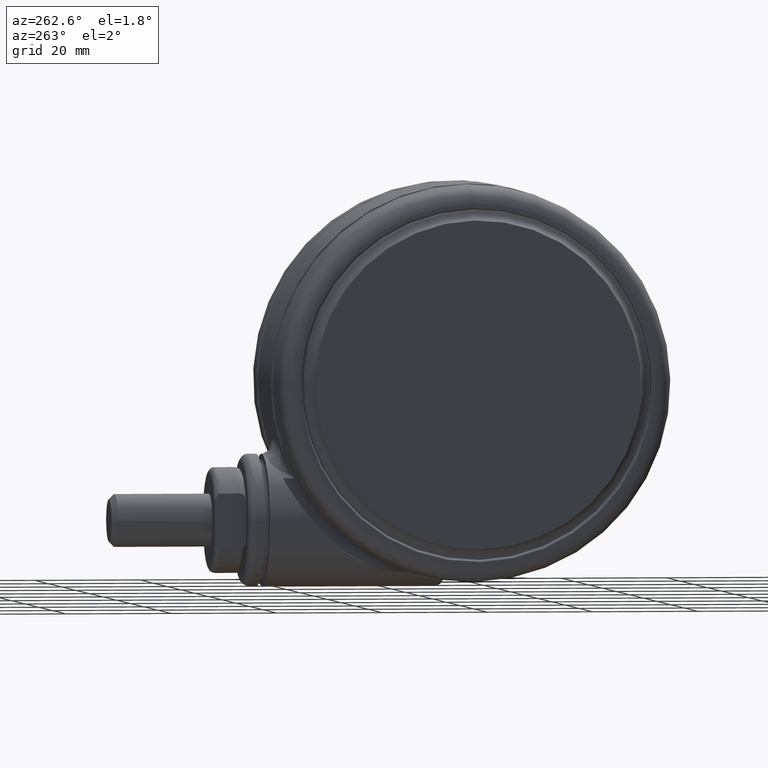
[diagram: clean part render]
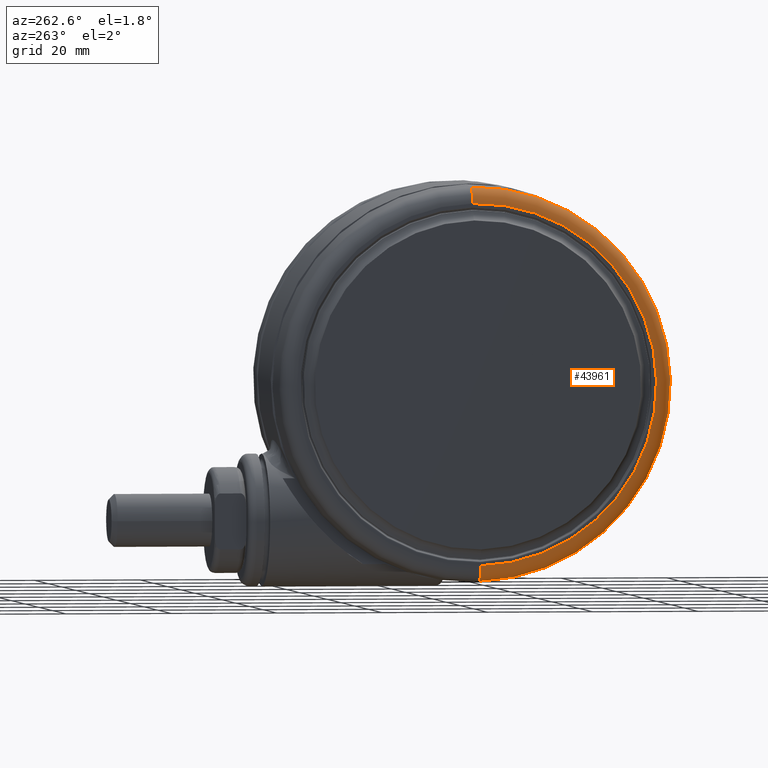
[diagram: same view with one face highlighted and labeled with its STEP entity id]
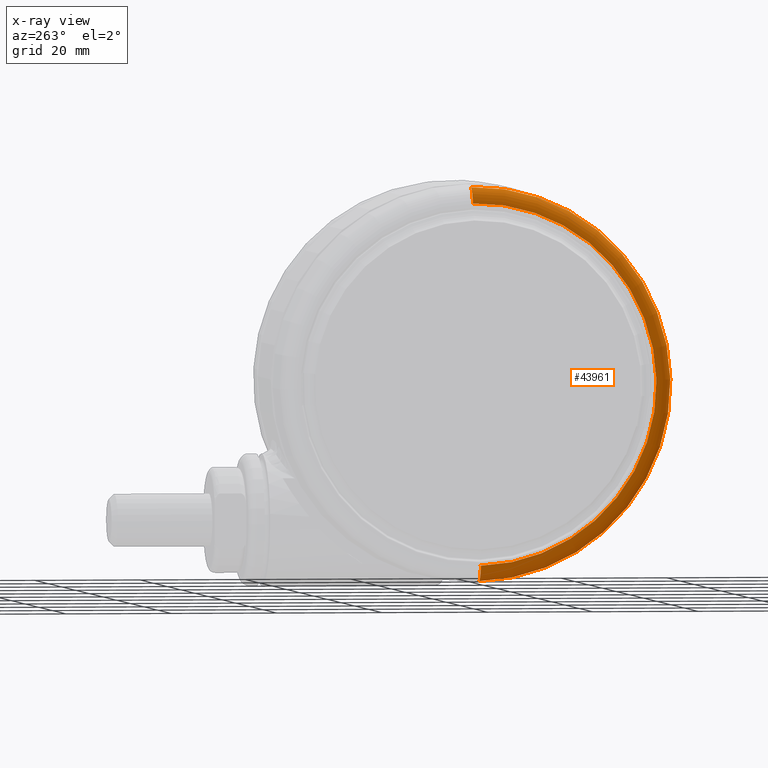
[diagram: x-ray of the same camera — body ghosted, the highlighted face saturated]
A machine part, auxiliary view. The second image highlights one B-rep face of the part: STEP entity #43961.
The next image is the same camera in x-ray: the body ghosted, the highlighted face saturated — about 0% of this face is hidden behind the body in this view.
In plain terms, the highlighted toroidal blend (fillet) surface has major radius 34.1304 mm and minor (blend) radius 3 mm.
Its self-contained STEP definition (entity closure, byte-faithful):
#192 = CARTESIAN_POINT ( 'NONE',  ( -14.06012315911549300, -31.09979316567394700, -45.89999999999998400 ) ) ;
#2204 = CARTESIAN_POINT ( 'NONE',  ( 14.06012315911542700, 31.09979316567387600, -45.89999999999998400 ) ) ;
#3672 = AXIS2_PLACEMENT_3D ( 'NONE', #45744, #18919, #50215 ) ;
#5109 = ORIENTED_EDGE ( 'NONE', *, *, #49048, .T. ) ;
#6061 = CARTESIAN_POINT ( 'NONE',  ( -3.469446951953614200E-014, -3.469446951953614200E-014, -45.89999999999998400 ) ) ;
#9990 = CARTESIAN_POINT ( 'NONE',  ( -3.469446951953614200E-014, -3.469446951953614200E-014, -42.89999999999999100 ) ) ;
#10580 = DIRECTION ( 'NONE',  ( 0.4119530739487650700, 0.9112050619175485800, 0.0000000000000000000 ) ) ;
#11637 = FACE_OUTER_BOUND ( 'NONE', #57581, .T. ) ;
#12516 = CIRCLE ( 'NONE', #54286, 34.13039991264668100 ) ;
#13528 = ORIENTED_EDGE ( 'NONE', *, *, #47985, .F. ) ;
#16453 = CARTESIAN_POINT ( 'NONE',  ( -14.06012315911549300, -31.09979316567394700, -42.89999999999999100 ) ) ;
#18919 = DIRECTION ( 'NONE',  ( 0.0000000000000000000, 0.0000000000000000000, -1.000000000000000000 ) ) ;
#20886 = DIRECTION ( 'NONE',  ( 0.4119530739487651800, 0.9112050619175484600, 0.0000000000000000000 ) ) ;
#21024 = VERTEX_POINT ( 'NONE', #50135 ) ;
#23654 = CIRCLE ( 'NONE', #3672, 37.12628851691039200 ) ;
#25405 = DIRECTION ( 'NONE',  ( -0.9112050619175485800, 0.4119530739487650700, 0.0000000000000000000 ) ) ;
#28260 = CIRCLE ( 'NONE', #41790, 2.999999999999987100 ) ;
#30386 = ORIENTED_EDGE ( 'NONE', *, *, #52742, .F. ) ;
#34041 = TOROIDAL_SURFACE ( 'NONE', #57395, 34.13039991264668100, 2.999999999999988000 ) ;
#37403 = DIRECTION ( 'NONE',  ( 0.0000000000000000000, 0.0000000000000000000, -1.000000000000000000 ) ) ;
#37553 = CIRCLE ( 'NONE', #55156, 2.999999999999987100 ) ;
#38048 = VERTEX_POINT ( 'NONE', #2204 ) ;
#41790 = AXIS2_PLACEMENT_3D ( 'NONE', #16453, #47726, #20886 ) ;
#43864 = VERTEX_POINT ( 'NONE', #192 ) ;
#43961 = ADVANCED_FACE ( 'NONE', ( #11637 ), #34041, .T. ) ;
#44894 = CARTESIAN_POINT ( 'NONE',  ( 15.29428867884993800, 33.82966202682006700, -43.05700786872880300 ) ) ;
#45444 = DIRECTION ( 'NONE',  ( 0.4119530739487650100, 0.9112050619175484600, 0.0000000000000000000 ) ) ;
#45744 = CARTESIAN_POINT ( 'NONE',  ( -3.469446951953614200E-014, -3.469446951953614200E-014, -43.05700786872880300 ) ) ;
#47726 = DIRECTION ( 'NONE',  ( 0.9112050619175485800, -0.4119530739487649600, 0.0000000000000000000 ) ) ;
#47985 = EDGE_CURVE ( 'NONE', #43864, #38048, #12516, .T. ) ;
#49048 = EDGE_CURVE ( 'NONE', #21024, #49941, #23654, .T. ) ;
#49941 = VERTEX_POINT ( 'NONE', #44894 ) ;
#50101 = DIRECTION ( 'NONE',  ( 0.0000000000000000000, 0.0000000000000000000, -1.000000000000000000 ) ) ;
#50135 = CARTESIAN_POINT ( 'NONE',  ( -15.29428867885000400, -33.82966202682013800, -43.05700786872880300 ) ) ;
#50215 = DIRECTION ( 'NONE',  ( 0.4119530739487650100, 0.9112050619175484600, 0.0000000000000000000 ) ) ;
#50289 = EDGE_CURVE ( 'NONE', #49941, #38048, #37553, .T. ) ;
#52214 = CARTESIAN_POINT ( 'NONE',  ( 14.06012315911542700, 31.09979316567387600, -42.89999999999999100 ) ) ;
#52742 = EDGE_CURVE ( 'NONE', #21024, #43864, #28260, .T. ) ;
#52757 = ORIENTED_EDGE ( 'NONE', *, *, #50289, .T. ) ;
#54286 = AXIS2_PLACEMENT_3D ( 'NONE', #6061, #37403, #10580 ) ;
#55156 = AXIS2_PLACEMENT_3D ( 'NONE', #52214, #25405, #56733 ) ;
#56733 = DIRECTION ( 'NONE',  ( -0.4119530739487651800, -0.9112050619175484600, 0.0000000000000000000 ) ) ;
#57395 = AXIS2_PLACEMENT_3D ( 'NONE', #9990, #50101, #45444 ) ;
#57581 = EDGE_LOOP ( 'NONE', ( #30386, #5109, #52757, #13528 ) ) ;